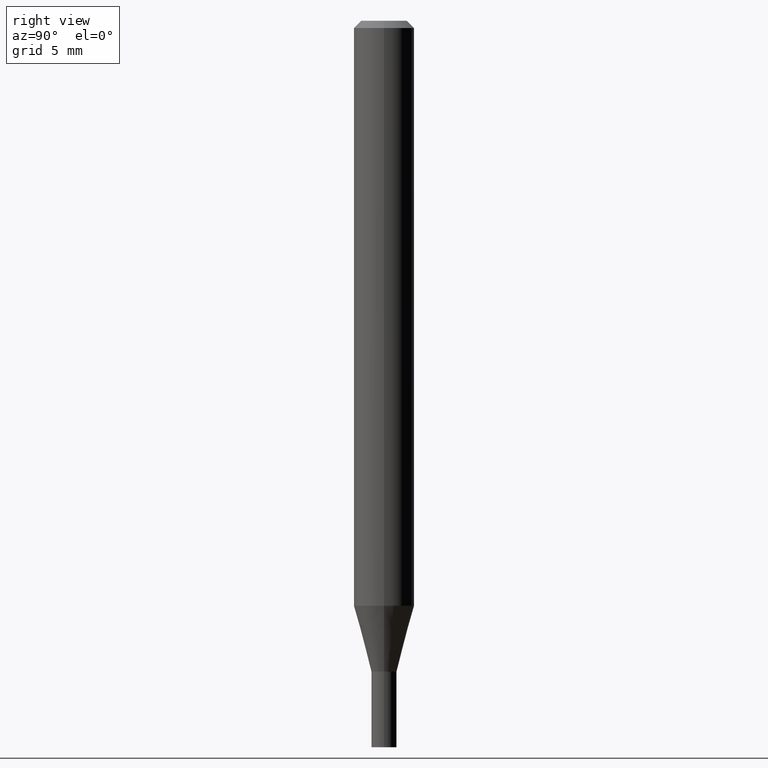
[diagram: clean part render]
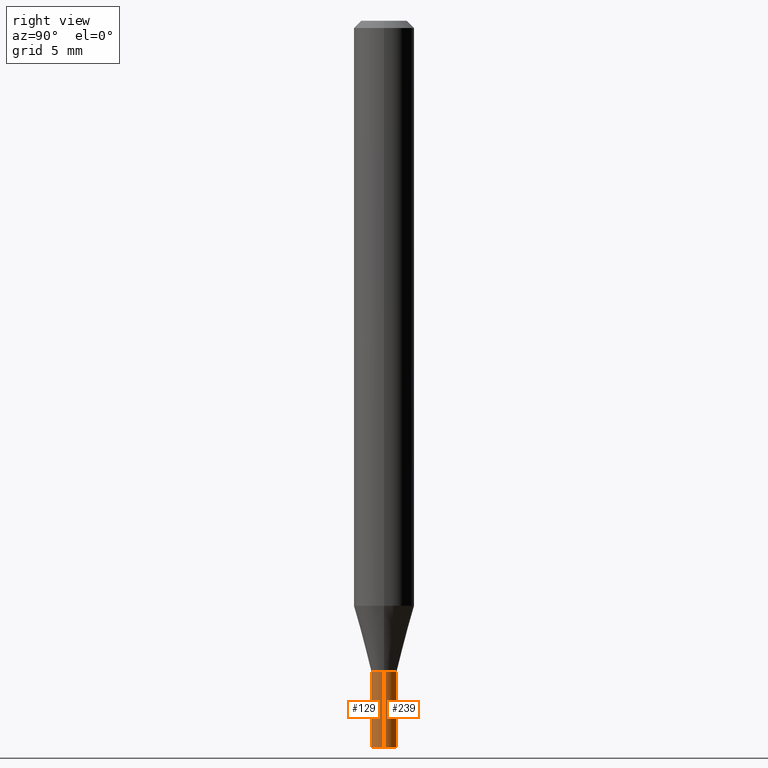
[diagram: same view with one multi-face feature highlighted, each face labeled with its STEP entity id]
A machine part, right view. The highlighted faces form ONE feature: a constant-radius fillet chain: 2 tangent blend faces with common blend radius 0.6604 mm. The faces share edges in the B-rep.
Their STEP definitions:
[1] entity #239 (Cylinder):
#2 = LINE ( 'NONE', #234, #319 ) ;
#5 = DIRECTION ( 'NONE',  ( -2.445468806185136597E-29, 3.491481338843145583E-15, 1.000000000000000000 ) ) ;
#40 = DIRECTION ( 'NONE',  ( 1.000000000000000000, -6.982962677686258822E-15, 0.000000000000000000 ) ) ;
#44 = CARTESIAN_POINT ( 'NONE',  ( 3.668203209277704895E-29, -5.237222008264718177E-15, -1.500000000000000222 ) ) ;
#45 = CARTESIAN_POINT ( 'NONE',  ( 0.02599999999999999534, -5.418779037884561648E-15, -1.500000000000000222 ) ) ;
#51 = VERTEX_POINT ( 'NONE', #358 ) ;
#77 = AXIS2_PLACEMENT_3D ( 'NONE', #130, #93, #349 ) ;
#93 = DIRECTION ( 'NONE',  ( -2.445468806185136597E-29, 3.491481338843145583E-15, 1.000000000000000000 ) ) ;
#99 = CARTESIAN_POINT ( 'NONE',  ( -0.02599999999999999534, 1.847411112976260152E-16, -1.278923123466275386E-30 ) ) ;
#128 = VERTEX_POINT ( 'NONE', #145 ) ;
#130 = CARTESIAN_POINT ( 'NONE',  ( 3.286710075512824263E-29, -4.692550919405188553E-15, -1.344000000000000306 ) ) ;
#136 = VERTEX_POINT ( 'NONE', #45 ) ;
#145 = CARTESIAN_POINT ( 'NONE',  ( -0.02599999999999999534, -4.780145352537327941E-15, -1.500000000000000222 ) ) ;
#165 = CIRCLE ( 'NONE', #311, 0.02599999999999999534 ) ;
#193 = AXIS2_PLACEMENT_3D ( 'NONE', #430, #253, #400 ) ;
#199 = EDGE_CURVE ( 'NONE', #136, #51, #2, .T. ) ;
#207 = ORIENTED_EDGE ( 'NONE', *, *, #287, .T. ) ;
#234 = CARTESIAN_POINT ( 'NONE',  ( 0.02599999999999999534, -1.815570296198429286E-16, 1.267805961706943054E-30 ) ) ;
#239 = ADVANCED_FACE ( 'NONE', ( #295 ), #324, .T. ) ;
#253 = DIRECTION ( 'NONE',  ( -2.445468806185136597E-29, 3.491481338843145583E-15, 1.000000000000000000 ) ) ;
#265 = ORIENTED_EDGE ( 'NONE', *, *, #337, .F. ) ;
#287 = EDGE_CURVE ( 'NONE', #128, #378, #421, .T. ) ;
#295 = FACE_OUTER_BOUND ( 'NONE', #424, .T. ) ;
#311 = AXIS2_PLACEMENT_3D ( 'NONE', #44, #5, #40 ) ;
#316 = ORIENTED_EDGE ( 'NONE', *, *, #403, .T. ) ;
#319 = VECTOR ( 'NONE', #373, 39.37007874015748143 ) ;
#324 = CYLINDRICAL_SURFACE ( 'NONE', #193, 0.02599999999999999534 ) ;
#337 = EDGE_CURVE ( 'NONE', #51, #378, #364, .T. ) ;
#349 = DIRECTION ( 'NONE',  ( 1.000000000000000000, -6.982962677686258822E-15, 0.000000000000000000 ) ) ;
#358 = CARTESIAN_POINT ( 'NONE',  ( 0.02599999999999999534, -4.874107949025031235E-15, -1.344000000000000306 ) ) ;
#364 = CIRCLE ( 'NONE', #77, 0.02599999999999999534 ) ;
#371 = CARTESIAN_POINT ( 'NONE',  ( -0.02599999999999999534, -4.780145352537327941E-15, -1.344000000000000306 ) ) ;
#373 = DIRECTION ( 'NONE',  ( -2.445468806185136877E-29, 3.491481338843145188E-15, 1.000000000000000000 ) ) ;
#378 = VERTEX_POINT ( 'NONE', #371 ) ;
#388 = VECTOR ( 'NONE', #389, 39.37007874015748143 ) ;
#389 = DIRECTION ( 'NONE',  ( -2.445468806185136877E-29, 3.491481338843145188E-15, 1.000000000000000000 ) ) ;
#400 = DIRECTION ( 'NONE',  ( 1.000000000000000000, -6.982962677686267499E-15, 4.876176775795935793E-29 ) ) ;
#403 = EDGE_CURVE ( 'NONE', #136, #128, #165, .T. ) ;
#421 = LINE ( 'NONE', #99, #388 ) ;
#424 = EDGE_LOOP ( 'NONE', ( #316, #207, #265, #455 ) ) ;
#430 = CARTESIAN_POINT ( 'NONE',  ( 0.000000000000000000, 0.000000000000000000, 0.000000000000000000 ) ) ;
#455 = ORIENTED_EDGE ( 'NONE', *, *, #199, .F. ) ;
[2] entity #129 (Cylinder):
#2 = LINE ( 'NONE', #234, #319 ) ;
#7 = FACE_OUTER_BOUND ( 'NONE', #82, .T. ) ;
#11 = CARTESIAN_POINT ( 'NONE',  ( 3.668203209277704895E-29, -5.237222008264718177E-15, -1.500000000000000222 ) ) ;
#22 = EDGE_CURVE ( 'NONE', #378, #51, #221, .T. ) ;
#45 = CARTESIAN_POINT ( 'NONE',  ( 0.02599999999999999534, -5.418779037884561648E-15, -1.500000000000000222 ) ) ;
#51 = VERTEX_POINT ( 'NONE', #358 ) ;
#55 = AXIS2_PLACEMENT_3D ( 'NONE', #11, #226, #341 ) ;
#82 = EDGE_LOOP ( 'NONE', ( #420, #445, #241, #106 ) ) ;
#99 = CARTESIAN_POINT ( 'NONE',  ( -0.02599999999999999534, 1.847411112976260152E-16, -1.278923123466275386E-30 ) ) ;
#106 = ORIENTED_EDGE ( 'NONE', *, *, #22, .F. ) ;
#128 = VERTEX_POINT ( 'NONE', #145 ) ;
#129 = ADVANCED_FACE ( 'NONE', ( #7 ), #335, .T. ) ;
#136 = VERTEX_POINT ( 'NONE', #45 ) ;
#145 = CARTESIAN_POINT ( 'NONE',  ( -0.02599999999999999534, -4.780145352537327941E-15, -1.500000000000000222 ) ) ;
#154 = AXIS2_PLACEMENT_3D ( 'NONE', #423, #356, #277 ) ;
#169 = EDGE_CURVE ( 'NONE', #128, #136, #256, .T. ) ;
#184 = DIRECTION ( 'NONE',  ( 1.000000000000000000, -6.982962677686267499E-15, 4.876176775795935793E-29 ) ) ;
#191 = DIRECTION ( 'NONE',  ( -2.445468806185136597E-29, 3.491481338843145583E-15, 1.000000000000000000 ) ) ;
#199 = EDGE_CURVE ( 'NONE', #136, #51, #2, .T. ) ;
#221 = CIRCLE ( 'NONE', #154, 0.02599999999999999534 ) ;
#226 = DIRECTION ( 'NONE',  ( -2.445468806185136597E-29, 3.491481338843145583E-15, 1.000000000000000000 ) ) ;
#234 = CARTESIAN_POINT ( 'NONE',  ( 0.02599999999999999534, -1.815570296198429286E-16, 1.267805961706943054E-30 ) ) ;
#241 = ORIENTED_EDGE ( 'NONE', *, *, #199, .T. ) ;
#256 = CIRCLE ( 'NONE', #55, 0.02599999999999999534 ) ;
#277 = DIRECTION ( 'NONE',  ( 1.000000000000000000, -6.982962677686258822E-15, 0.000000000000000000 ) ) ;
#287 = EDGE_CURVE ( 'NONE', #128, #378, #421, .T. ) ;
#301 = CARTESIAN_POINT ( 'NONE',  ( 0.000000000000000000, 0.000000000000000000, 0.000000000000000000 ) ) ;
#319 = VECTOR ( 'NONE', #373, 39.37007874015748143 ) ;
#335 = CYLINDRICAL_SURFACE ( 'NONE', #451, 0.02599999999999999534 ) ;
#341 = DIRECTION ( 'NONE',  ( 1.000000000000000000, -6.982962677686258822E-15, 0.000000000000000000 ) ) ;
#356 = DIRECTION ( 'NONE',  ( -2.445468806185136597E-29, 3.491481338843145583E-15, 1.000000000000000000 ) ) ;
#358 = CARTESIAN_POINT ( 'NONE',  ( 0.02599999999999999534, -4.874107949025031235E-15, -1.344000000000000306 ) ) ;
#371 = CARTESIAN_POINT ( 'NONE',  ( -0.02599999999999999534, -4.780145352537327941E-15, -1.344000000000000306 ) ) ;
#373 = DIRECTION ( 'NONE',  ( -2.445468806185136877E-29, 3.491481338843145188E-15, 1.000000000000000000 ) ) ;
#378 = VERTEX_POINT ( 'NONE', #371 ) ;
#388 = VECTOR ( 'NONE', #389, 39.37007874015748143 ) ;
#389 = DIRECTION ( 'NONE',  ( -2.445468806185136877E-29, 3.491481338843145188E-15, 1.000000000000000000 ) ) ;
#420 = ORIENTED_EDGE ( 'NONE', *, *, #287, .F. ) ;
#421 = LINE ( 'NONE', #99, #388 ) ;
#423 = CARTESIAN_POINT ( 'NONE',  ( 3.286710075512824263E-29, -4.692550919405188553E-15, -1.344000000000000306 ) ) ;
#445 = ORIENTED_EDGE ( 'NONE', *, *, #169, .T. ) ;
#451 = AXIS2_PLACEMENT_3D ( 'NONE', #301, #191, #184 ) ;